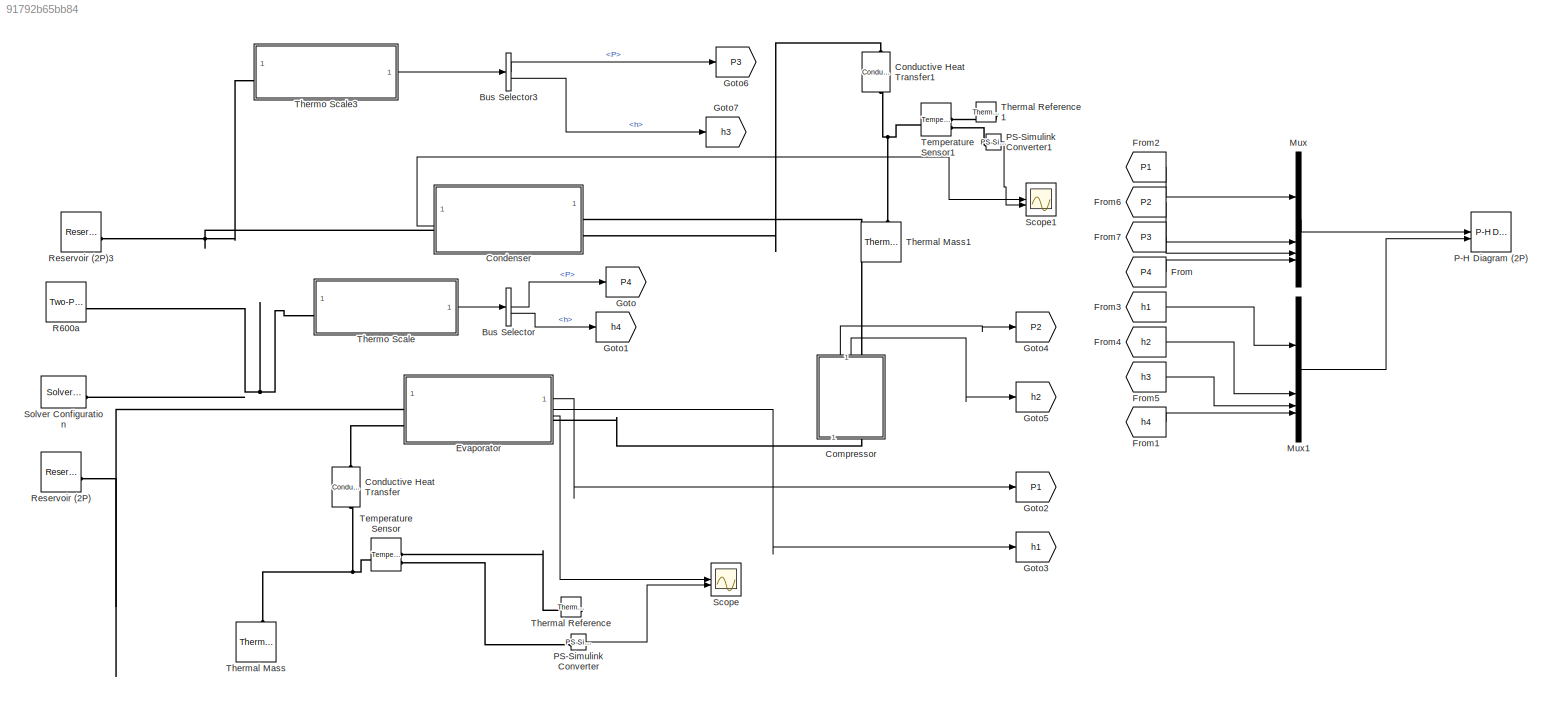
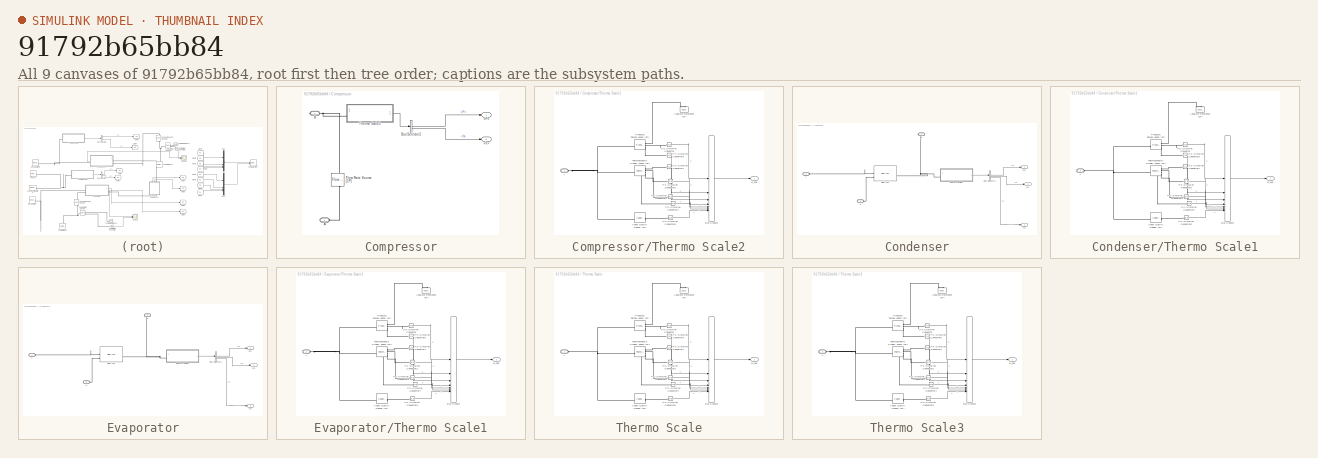
[diagram: thumbnail index - all 9 canvases of the model, root first then tree order]
MODEL slx_91792b65bb84
KIND model
CONFIG AbsTol = auto
CONFIG EnableMultiTasking = off
CONFIG FixedStep = auto
CONFIG MaxStep = auto
CONFIG MinStep = auto
CONFIG RelTol = 1e-3
CONFIG SampleTimeConstraint = Unconstrained
CONFIG SolverName = VariableStepAuto
CONFIG StartTime = 0.0
CONFIG StopTime = 10
BLOCK [BusSelector] Bus Selector
  OutputSignals = P,h
BLOCK [BusSelector] Bus Selector3
  OutputSignals = P,h
BLOCK [SubSystem] Compressor
  NameLocation = right
  PortSchema = {"entries":[{"content":{"sides":[{"content":{"connectorIds":["LConn1"]},"type":"ConnectorPlacement.EquallySpacedRectSide","uuid":"48c1b80d-d804-4b56-9f47-e93425e25a8d"},{"content":{"connectorIds":["RConn1","Out1","Out2"],"side":"RIGHT"},"type":"ConnectorPlacement.EquallySpacedRectSide","uuid":"d5127958-2692-4676-81a6-46f9c9291fea"},{"content":{"side":"TOP"},"type":"ConnectorPlacement.EquallySpaced...<+241ch>
BLOCK [Outport] Compressor/<P>
BLOCK [Outport] Compressor/<h>
  Port = 2
BLOCK [PMIOPort] Compressor/A
  Side = Left
BLOCK [PMIOPort] Compressor/B
  Port = 2
  Side = Right
BLOCK [BusSelector] Compressor/Bus Selector2
  OutputSignals = P,h
BLOCK [Reference] Compressor/Flow Rate Source (2P)  REF=fl_lib/Two-Phase Fluid/Sources/Flow Rate Source
(2P)
  NameLocation = right
  SourceBlock = fl_lib/Two-Phase Fluid/Sources/Flow Rate Source\n(2P)
  SourceType = Flow Rate Source\n(2P)
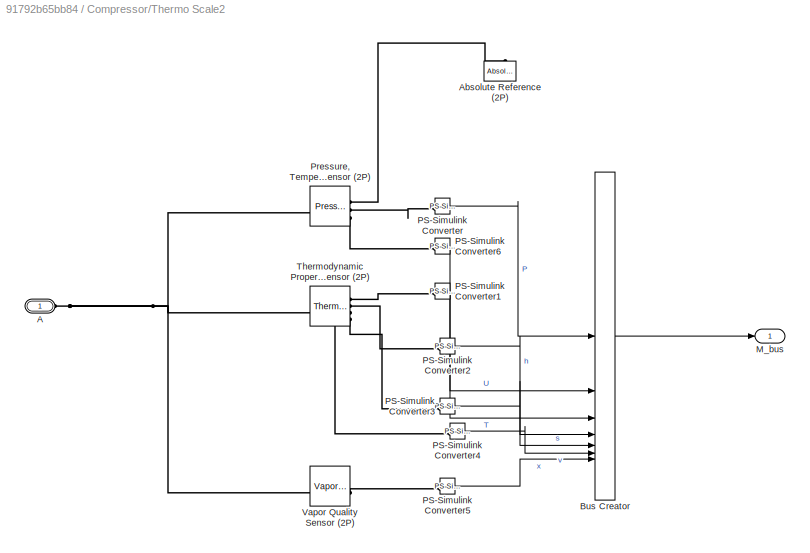
BLOCK [SubSystem] Compressor/Thermo Scale2
BLOCK [PMIOPort] Compressor/Thermo Scale2/A
  Side = Left
BLOCK [Reference] Compressor/Thermo Scale2/Absolute Reference (2P)  REF=fl_lib/Two-Phase Fluid/Elements/Absolute Reference
(2P)
  NameLocation = right
  SourceBlock = fl_lib/Two-Phase Fluid/Elements/Absolute Reference\n(2P)
  SourceType = Absolute Reference\n(2P)
BLOCK [BusCreator] Compressor/Thermo Scale2/Bus Creator
  DisplayOption = bar
  InheritFromInputs = on
  Inputs = 7
BLOCK [Outport] Compressor/Thermo Scale2/M_bus
BLOCK [Reference] Compressor/Thermo Scale2/PS-Simulink Converter  REF=nesl_utility/PS-Simulink
Converter
  SourceBlock = nesl_utility/PS-Simulink\nConverter
  SourceType = PS-Simulink\nConverter
BLOCK [Reference] Compressor/Thermo Scale2/PS-Simulink Converter1  REF=nesl_utility/PS-Simulink
Converter
  SourceBlock = nesl_utility/PS-Simulink\nConverter
  SourceType = PS-Simulink\nConverter
BLOCK [Reference] Compressor/Thermo Scale2/PS-Simulink Converter2  REF=nesl_utility/PS-Simulink
Converter
  SourceBlock = nesl_utility/PS-Simulink\nConverter
  SourceType = PS-Simulink\nConverter
BLOCK [Reference] Compressor/Thermo Scale2/PS-Simulink Converter3  REF=nesl_utility/PS-Simulink
Converter
  SourceBlock = nesl_utility/PS-Simulink\nConverter
  SourceType = PS-Simulink\nConverter
BLOCK [Reference] Compressor/Thermo Scale2/PS-Simulink Converter4  REF=nesl_utility/PS-Simulink
Converter
  SourceBlock = nesl_utility/PS-Simulink\nConverter
  SourceType = PS-Simulink\nConverter
BLOCK [Reference] Compressor/Thermo Scale2/PS-Simulink Converter5  REF=nesl_utility/PS-Simulink
Converter
  SourceBlock = nesl_utility/PS-Simulink\nConverter
  SourceType = PS-Simulink\nConverter
BLOCK [Reference] Compressor/Thermo Scale2/PS-Simulink Converter6  REF=nesl_utility/PS-Simulink
Converter
  SourceBlock = nesl_utility/PS-Simulink\nConverter
  SourceType = PS-Simulink\nConverter
BLOCK [Reference] Compressor/Thermo Scale2/Pressure, Temperature & Internal Energy Sensor (2P)  REF=fl_lib/Two-Phase Fluid/Sensors/Pressure,
Temperature &
Internal Energy
Sensor (2P)
  SourceBlock = fl_lib/Two-Phase Fluid/Sensors/Pressure,\nTemperature &\nInternal Energy\nSensor (2P)
  SourceType = Pressure,\nTemperature &\nInternal Energy\nSensor (2P)
BLOCK [Reference] Compressor/Thermo Scale2/Thermodynamic Properties Sensor (2P)  REF=fl_lib/Two-Phase Fluid/Sensors/Thermodynamic
Properties Sensor
(2P)
  SourceBlock = fl_lib/Two-Phase Fluid/Sensors/Thermodynamic\nProperties Sensor\n(2P)
  SourceType = Thermodynamic\nProperties Sensor\n(2P)
BLOCK [Reference] Compressor/Thermo Scale2/Vapor Quality Sensor (2P)  REF=fl_lib/Two-Phase Fluid/Sensors/Vapor Quality Sensor
(2P)
  SourceBlock = fl_lib/Two-Phase Fluid/Sensors/Vapor Quality Sensor\n(2P)
  SourceType = Vapor Quality Sensor\n(2P)
BLOCK [SubSystem] Condenser
  NameLocation = top
BLOCK [Outport] Condenser/<P>
BLOCK [Outport] Condenser/<T>
  Port = 3
BLOCK [Outport] Condenser/<h>
  Port = 2
BLOCK [PMIOPort] Condenser/A
  Port = 2
  Side = Left
BLOCK [PMIOPort] Condenser/B
  Side = Right
BLOCK [BusSelector] Condenser/Bus Selector1
  OutputSignals = P,h,T
BLOCK [PMIOPort] Condenser/H
  Port = 3
  Side = Left
BLOCK [Reference] Condenser/Pipe (2P)  REF=fl_lib/Two-Phase Fluid/Elements/Pipe (2P)
  SourceBlock = fl_lib/Two-Phase Fluid/Elements/Pipe (2P)
  SourceType = Pipe (2P)
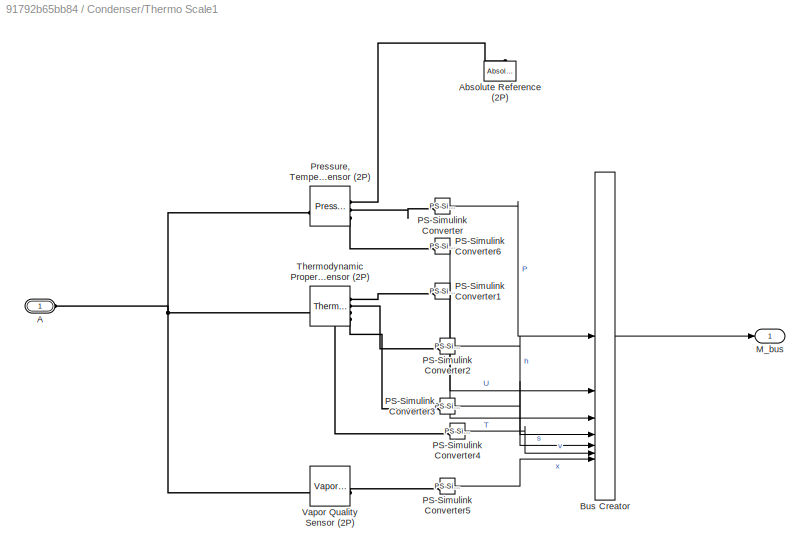
BLOCK [SubSystem] Condenser/Thermo Scale1
BLOCK [PMIOPort] Condenser/Thermo Scale1/A
  Side = Left
BLOCK [Reference] Condenser/Thermo Scale1/Absolute Reference (2P)  REF=fl_lib/Two-Phase Fluid/Elements/Absolute Reference
(2P)
  NameLocation = right
  SourceBlock = fl_lib/Two-Phase Fluid/Elements/Absolute Reference\n(2P)
  SourceType = Absolute Reference\n(2P)
BLOCK [BusCreator] Condenser/Thermo Scale1/Bus Creator
  DisplayOption = bar
  InheritFromInputs = on
  Inputs = 7
BLOCK [Outport] Condenser/Thermo Scale1/M_bus
BLOCK [Reference] Condenser/Thermo Scale1/PS-Simulink Converter  REF=nesl_utility/PS-Simulink
Converter
  SourceBlock = nesl_utility/PS-Simulink\nConverter
  SourceType = PS-Simulink\nConverter
BLOCK [Reference] Condenser/Thermo Scale1/PS-Simulink Converter1  REF=nesl_utility/PS-Simulink
Converter
  SourceBlock = nesl_utility/PS-Simulink\nConverter
  SourceType = PS-Simulink\nConverter
BLOCK [Reference] Condenser/Thermo Scale1/PS-Simulink Converter2  REF=nesl_utility/PS-Simulink
Converter
  SourceBlock = nesl_utility/PS-Simulink\nConverter
  SourceType = PS-Simulink\nConverter
BLOCK [Reference] Condenser/Thermo Scale1/PS-Simulink Converter3  REF=nesl_utility/PS-Simulink
Converter
  SourceBlock = nesl_utility/PS-Simulink\nConverter
  SourceType = PS-Simulink\nConverter
BLOCK [Reference] Condenser/Thermo Scale1/PS-Simulink Converter4  REF=nesl_utility/PS-Simulink
Converter
  SourceBlock = nesl_utility/PS-Simulink\nConverter
  SourceType = PS-Simulink\nConverter
BLOCK [Reference] Condenser/Thermo Scale1/PS-Simulink Converter5  REF=nesl_utility/PS-Simulink
Converter
  SourceBlock = nesl_utility/PS-Simulink\nConverter
  SourceType = PS-Simulink\nConverter
BLOCK [Reference] Condenser/Thermo Scale1/PS-Simulink Converter6  REF=nesl_utility/PS-Simulink
Converter
  SourceBlock = nesl_utility/PS-Simulink\nConverter
  SourceType = PS-Simulink\nConverter
BLOCK [Reference] Condenser/Thermo Scale1/Pressure, Temperature & Internal Energy Sensor (2P)  REF=fl_lib/Two-Phase Fluid/Sensors/Pressure,
Temperature &
Internal Energy
Sensor (2P)
  SourceBlock = fl_lib/Two-Phase Fluid/Sensors/Pressure,\nTemperature &\nInternal Energy\nSensor (2P)
  SourceType = Pressure,\nTemperature &\nInternal Energy\nSensor (2P)
BLOCK [Reference] Condenser/Thermo Scale1/Thermodynamic Properties Sensor (2P)  REF=fl_lib/Two-Phase Fluid/Sensors/Thermodynamic
Properties Sensor
(2P)
  SourceBlock = fl_lib/Two-Phase Fluid/Sensors/Thermodynamic\nProperties Sensor\n(2P)
  SourceType = Thermodynamic\nProperties Sensor\n(2P)
BLOCK [Reference] Condenser/Thermo Scale1/Vapor Quality Sensor (2P)  REF=fl_lib/Two-Phase Fluid/Sensors/Vapor Quality Sensor
(2P)
  SourceBlock = fl_lib/Two-Phase Fluid/Sensors/Vapor Quality Sensor\n(2P)
  SourceType = Vapor Quality Sensor\n(2P)
BLOCK [Reference] Conductive Heat Transfer  REF=fl_lib/Thermal/Thermal Elements/Conductive Heat
Transfer
  NameLocation = left
  SourceBlock = fl_lib/Thermal/Thermal Elements/Conductive Heat\nTransfer
  SourceType = Conductive Heat\nTransfer
BLOCK [Reference] Conductive Heat Transfer1  REF=fl_lib/Thermal/Thermal Elements/Conductive Heat
Transfer
  NameLocation = left
  SourceBlock = fl_lib/Thermal/Thermal Elements/Conductive Heat\nTransfer
  SourceType = Conductive Heat\nTransfer
BLOCK [SubSystem] Evaporator
BLOCK [Outport] Evaporator/<P>
BLOCK [Outport] Evaporator/<T>
  Port = 3
BLOCK [Outport] Evaporator/<h>
  Port = 2
BLOCK [PMIOPort] Evaporator/A
  Port = 2
  Side = Left
BLOCK [PMIOPort] Evaporator/B
  Side = Right
BLOCK [BusSelector] Evaporator/Bus Selector1
  OutputSignals = P,h,T
BLOCK [PMIOPort] Evaporator/H
  Port = 3
  Side = Left
BLOCK [Reference] Evaporator/Pipe (2P)  REF=fl_lib/Two-Phase Fluid/Elements/Pipe (2P)
  SourceBlock = fl_lib/Two-Phase Fluid/Elements/Pipe (2P)
  SourceType = Pipe (2P)
BLOCK [SubSystem] Evaporator/Thermo Scale1
BLOCK [PMIOPort] Evaporator/Thermo Scale1/A
  Side = Left
BLOCK [Reference] Evaporator/Thermo Scale1/Absolute Reference (2P)  REF=fl_lib/Two-Phase Fluid/Elements/Absolute Reference
(2P)
  NameLocation = right
  SourceBlock = fl_lib/Two-Phase Fluid/Elements/Absolute Reference\n(2P)
  SourceType = Absolute Reference\n(2P)
BLOCK [BusCreator] Evaporator/Thermo Scale1/Bus Creator
  DisplayOption = bar
  InheritFromInputs = on
  Inputs = 7
BLOCK [Outport] Evaporator/Thermo Scale1/M_bus
BLOCK [Reference] Evaporator/Thermo Scale1/PS-Simulink Converter  REF=nesl_utility/PS-Simulink
Converter
  SourceBlock = nesl_utility/PS-Simulink\nConverter
  SourceType = PS-Simulink\nConverter
BLOCK [Reference] Evaporator/Thermo Scale1/PS-Simulink Converter1  REF=nesl_utility/PS-Simulink
Converter
  SourceBlock = nesl_utility/PS-Simulink\nConverter
  SourceType = PS-Simulink\nConverter
BLOCK [Reference] Evaporator/Thermo Scale1/PS-Simulink Converter2  REF=nesl_utility/PS-Simulink
Converter
  SourceBlock = nesl_utility/PS-Simulink\nConverter
  SourceType = PS-Simulink\nConverter
BLOCK [Reference] Evaporator/Thermo Scale1/PS-Simulink Converter3  REF=nesl_utility/PS-Simulink
Converter
  SourceBlock = nesl_utility/PS-Simulink\nConverter
  SourceType = PS-Simulink\nConverter
BLOCK [Reference] Evaporator/Thermo Scale1/PS-Simulink Converter4  REF=nesl_utility/PS-Simulink
Converter
  SourceBlock = nesl_utility/PS-Simulink\nConverter
  SourceType = PS-Simulink\nConverter
BLOCK [Reference] Evaporator/Thermo Scale1/PS-Simulink Converter5  REF=nesl_utility/PS-Simulink
Converter
  SourceBlock = nesl_utility/PS-Simulink\nConverter
  SourceType = PS-Simulink\nConverter
BLOCK [Reference] Evaporator/Thermo Scale1/PS-Simulink Converter6  REF=nesl_utility/PS-Simulink
Converter
  SourceBlock = nesl_utility/PS-Simulink\nConverter
  SourceType = PS-Simulink\nConverter
BLOCK [Reference] Evaporator/Thermo Scale1/Pressure, Temperature & Internal Energy Sensor (2P)  REF=fl_lib/Two-Phase Fluid/Sensors/Pressure,
Temperature &
Internal Energy
Sensor (2P)
  SourceBlock = fl_lib/Two-Phase Fluid/Sensors/Pressure,\nTemperature &\nInternal Energy\nSensor (2P)
  SourceType = Pressure,\nTemperature &\nInternal Energy\nSensor (2P)
BLOCK [Reference] Evaporator/Thermo Scale1/Thermodynamic Properties Sensor (2P)  REF=fl_lib/Two-Phase Fluid/Sensors/Thermodynamic
Properties Sensor
(2P)
  SourceBlock = fl_lib/Two-Phase Fluid/Sensors/Thermodynamic\nProperties Sensor\n(2P)
  SourceType = Thermodynamic\nProperties Sensor\n(2P)
BLOCK [Reference] Evaporator/Thermo Scale1/Vapor Quality Sensor (2P)  REF=fl_lib/Two-Phase Fluid/Sensors/Vapor Quality Sensor
(2P)
  SourceBlock = fl_lib/Two-Phase Fluid/Sensors/Vapor Quality Sensor\n(2P)
  SourceType = Vapor Quality Sensor\n(2P)
BLOCK [From] From
  GotoTag = P4
BLOCK [From] From1
  GotoTag = h4
BLOCK [From] From2
  GotoTag = P1
BLOCK [From] From3
  GotoTag = h1
BLOCK [From] From4
  GotoTag = h2
BLOCK [From] From5
  GotoTag = h3
BLOCK [From] From6
  GotoTag = P2
BLOCK [From] From7
  GotoTag = P3
BLOCK [Goto] Goto
  GotoTag = P4
BLOCK [Goto] Goto1
  GotoTag = h4
BLOCK [Goto] Goto2
  GotoTag = P1
BLOCK [Goto] Goto3
  GotoTag = h1
BLOCK [Goto] Goto4
  GotoTag = P2
BLOCK [Goto] Goto5
  GotoTag = h2
BLOCK [Goto] Goto6
  GotoTag = P3
BLOCK [Goto] Goto7
  GotoTag = h3
BLOCK [Mux] Mux
  DisplayOption = bar
BLOCK [Mux] Mux1
  DisplayOption = bar
BLOCK [Reference] P-H Diagram (2P)  REF=SimscapeFluids_lib/Two-Phase Fluid/Utilities/P-H Diagram (2P)
  SourceBlock = SimscapeFluids_lib/Two-Phase Fluid/Utilities/P-H Diagram (2P)
  SourceType = P-H Diagram (2P)
  UserDataPersistent = on
BLOCK [Reference] PS-Simulink Converter  REF=nesl_utility/PS-Simulink
Converter
  SourceBlock = nesl_utility/PS-Simulink\nConverter
  SourceType = PS-Simulink\nConverter
BLOCK [Reference] PS-Simulink Converter1  REF=nesl_utility/PS-Simulink
Converter
  SourceBlock = nesl_utility/PS-Simulink\nConverter
  SourceType = PS-Simulink\nConverter
BLOCK [Reference] R600a  REF=SimscapeFluids_lib/Two-Phase Fluid/Utilities/Two-Phase Fluid
Predefined
Properties (2P)
  SourceBlock = SimscapeFluids_lib/Two-Phase Fluid/Utilities/Two-Phase Fluid\nPredefined\nProperties (2P)
  SourceType = Two-Phase Fluid\nPredefined\nProperties (2P)
BLOCK [Reference] Reservoir (2P)  REF=fl_lib/Two-Phase Fluid/Elements/Reservoir (2P)
  SourceBlock = fl_lib/Two-Phase Fluid/Elements/Reservoir (2P)
  SourceType = Reservoir (2P)
BLOCK [Reference] Reservoir (2P)3  REF=fl_lib/Two-Phase Fluid/Elements/Reservoir (2P)
  SourceBlock = fl_lib/Two-Phase Fluid/Elements/Reservoir (2P)
  SourceType = Reservoir (2P)
BLOCK [Scope] Scope
  Floating = off
  NumInputPorts = 2
  ScopeSpecificationString = Simulink.scopes.TimeScopeBlockCfg('CurrentConfiguration', extmgr.ConfigurationSet(extmgr.Configuration('Core','General UI',true),extmgr.Configuration('Core','Source UI',true),extmgr.Configuration('Sources','WiredSimulink',true),extmgr.Configuration('Visuals','Time Domain',true,'SerializedDisplays',{struct('MinYLimReal','225.41696','MaxYLimReal','319.39812','YLabelReal','','MinYLimMag','225.41696',...<+1459ch>
BLOCK [Scope] Scope1
  Floating = off
  NumInputPorts = 2
  ScopeSpecificationString = Simulink.scopes.TimeScopeBlockCfg('CurrentConfiguration', extmgr.ConfigurationSet(extmgr.Configuration('Core','General UI',true),extmgr.Configuration('Core','Source UI',true),extmgr.Configuration('Sources','WiredSimulink',true,'DataLoggingVariableName','ScopeData1'),extmgr.Configuration('Visuals','Time Domain',true,'SerializedDisplays',{struct('MinYLimReal','292.39708','MaxYLimReal','311.95588','Y...<+1639ch>
BLOCK [Reference] Solver Configuration  REF=nesl_utility/Solver
Configuration
  SourceBlock = nesl_utility/Solver\nConfiguration
  SourceType = Solver\nConfiguration
BLOCK [Reference] Temperature Sensor  REF=fl_lib/Thermal/Thermal Sensors/Temperature Sensor
  SourceBlock = fl_lib/Thermal/Thermal Sensors/Temperature Sensor
  SourceType = Temperature Sensor
BLOCK [Reference] Temperature Sensor1  REF=fl_lib/Thermal/Thermal Sensors/Temperature Sensor
  SourceBlock = fl_lib/Thermal/Thermal Sensors/Temperature Sensor
  SourceType = Temperature Sensor
BLOCK [Reference] Thermal Mass  REF=fl_lib/Thermal/Thermal Elements/Thermal Mass
  NameLocation = right
  SourceBlock = fl_lib/Thermal/Thermal Elements/Thermal Mass
  SourceType = Thermal Mass
BLOCK [Reference] Thermal Mass1  REF=fl_lib/Thermal/Thermal Elements/Thermal Mass
  NameLocation = right
  SourceBlock = fl_lib/Thermal/Thermal Elements/Thermal Mass
  SourceType = Thermal Mass
BLOCK [Reference] Thermal Reference  REF=fl_lib/Thermal/Thermal Elements/Thermal Reference
  NameLocation = top
  SourceBlock = fl_lib/Thermal/Thermal Elements/Thermal Reference
  SourceType = Thermal Reference
BLOCK [Reference] Thermal Reference1  REF=fl_lib/Thermal/Thermal Elements/Thermal Reference
  NameLocation = top
  SourceBlock = fl_lib/Thermal/Thermal Elements/Thermal Reference
  SourceType = Thermal Reference
BLOCK [SubSystem] Thermo Scale
BLOCK [PMIOPort] Thermo Scale/A
  Side = Left
BLOCK [Reference] Thermo Scale/Absolute Reference (2P)  REF=fl_lib/Two-Phase Fluid/Elements/Absolute Reference
(2P)
  NameLocation = right
  SourceBlock = fl_lib/Two-Phase Fluid/Elements/Absolute Reference\n(2P)
  SourceType = Absolute Reference\n(2P)
BLOCK [BusCreator] Thermo Scale/Bus Creator
  DisplayOption = bar
  InheritFromInputs = on
  Inputs = 7
BLOCK [Outport] Thermo Scale/M_bus
BLOCK [Reference] Thermo Scale/PS-Simulink Converter  REF=nesl_utility/PS-Simulink
Converter
  SourceBlock = nesl_utility/PS-Simulink\nConverter
  SourceType = PS-Simulink\nConverter
BLOCK [Reference] Thermo Scale/PS-Simulink Converter1  REF=nesl_utility/PS-Simulink
Converter
  SourceBlock = nesl_utility/PS-Simulink\nConverter
  SourceType = PS-Simulink\nConverter
BLOCK [Reference] Thermo Scale/PS-Simulink Converter2  REF=nesl_utility/PS-Simulink
Converter
  SourceBlock = nesl_utility/PS-Simulink\nConverter
  SourceType = PS-Simulink\nConverter
BLOCK [Reference] Thermo Scale/PS-Simulink Converter3  REF=nesl_utility/PS-Simulink
Converter
  SourceBlock = nesl_utility/PS-Simulink\nConverter
  SourceType = PS-Simulink\nConverter
BLOCK [Reference] Thermo Scale/PS-Simulink Converter4  REF=nesl_utility/PS-Simulink
Converter
  SourceBlock = nesl_utility/PS-Simulink\nConverter
  SourceType = PS-Simulink\nConverter
BLOCK [Reference] Thermo Scale/PS-Simulink Converter5  REF=nesl_utility/PS-Simulink
Converter
  SourceBlock = nesl_utility/PS-Simulink\nConverter
  SourceType = PS-Simulink\nConverter
BLOCK [Reference] Thermo Scale/PS-Simulink Converter6  REF=nesl_utility/PS-Simulink
Converter
  SourceBlock = nesl_utility/PS-Simulink\nConverter
  SourceType = PS-Simulink\nConverter
BLOCK [Reference] Thermo Scale/Pressure, Temperature & Internal Energy Sensor (2P)  REF=fl_lib/Two-Phase Fluid/Sensors/Pressure,
Temperature &
Internal Energy
Sensor (2P)
  SourceBlock = fl_lib/Two-Phase Fluid/Sensors/Pressure,\nTemperature &\nInternal Energy\nSensor (2P)
  SourceType = Pressure,\nTemperature &\nInternal Energy\nSensor (2P)
BLOCK [Reference] Thermo Scale/Thermodynamic Properties Sensor (2P)  REF=fl_lib/Two-Phase Fluid/Sensors/Thermodynamic
Properties Sensor
(2P)
  SourceBlock = fl_lib/Two-Phase Fluid/Sensors/Thermodynamic\nProperties Sensor\n(2P)
  SourceType = Thermodynamic\nProperties Sensor\n(2P)
BLOCK [Reference] Thermo Scale/Vapor Quality Sensor (2P)  REF=fl_lib/Two-Phase Fluid/Sensors/Vapor Quality Sensor
(2P)
  SourceBlock = fl_lib/Two-Phase Fluid/Sensors/Vapor Quality Sensor\n(2P)
  SourceType = Vapor Quality Sensor\n(2P)
BLOCK [SubSystem] Thermo Scale3
BLOCK [PMIOPort] Thermo Scale3/A
  Side = Left
BLOCK [Reference] Thermo Scale3/Absolute Reference (2P)  REF=fl_lib/Two-Phase Fluid/Elements/Absolute Reference
(2P)
  NameLocation = right
  SourceBlock = fl_lib/Two-Phase Fluid/Elements/Absolute Reference\n(2P)
  SourceType = Absolute Reference\n(2P)
BLOCK [BusCreator] Thermo Scale3/Bus Creator
  DisplayOption = bar
  InheritFromInputs = on
  Inputs = 7
BLOCK [Outport] Thermo Scale3/M_bus
BLOCK [Reference] Thermo Scale3/PS-Simulink Converter  REF=nesl_utility/PS-Simulink
Converter
  SourceBlock = nesl_utility/PS-Simulink\nConverter
  SourceType = PS-Simulink\nConverter
BLOCK [Reference] Thermo Scale3/PS-Simulink Converter1  REF=nesl_utility/PS-Simulink
Converter
  SourceBlock = nesl_utility/PS-Simulink\nConverter
  SourceType = PS-Simulink\nConverter
BLOCK [Reference] Thermo Scale3/PS-Simulink Converter2  REF=nesl_utility/PS-Simulink
Converter
  SourceBlock = nesl_utility/PS-Simulink\nConverter
  SourceType = PS-Simulink\nConverter
BLOCK [Reference] Thermo Scale3/PS-Simulink Converter3  REF=nesl_utility/PS-Simulink
Converter
  SourceBlock = nesl_utility/PS-Simulink\nConverter
  SourceType = PS-Simulink\nConverter
BLOCK [Reference] Thermo Scale3/PS-Simulink Converter4  REF=nesl_utility/PS-Simulink
Converter
  SourceBlock = nesl_utility/PS-Simulink\nConverter
  SourceType = PS-Simulink\nConverter
BLOCK [Reference] Thermo Scale3/PS-Simulink Converter5  REF=nesl_utility/PS-Simulink
Converter
  SourceBlock = nesl_utility/PS-Simulink\nConverter
  SourceType = PS-Simulink\nConverter
BLOCK [Reference] Thermo Scale3/PS-Simulink Converter6  REF=nesl_utility/PS-Simulink
Converter
  SourceBlock = nesl_utility/PS-Simulink\nConverter
  SourceType = PS-Simulink\nConverter
BLOCK [Reference] Thermo Scale3/Pressure, Temperature & Internal Energy Sensor (2P)  REF=fl_lib/Two-Phase Fluid/Sensors/Pressure,
Temperature &
Internal Energy
Sensor (2P)
  SourceBlock = fl_lib/Two-Phase Fluid/Sensors/Pressure,\nTemperature &\nInternal Energy\nSensor (2P)
  SourceType = Pressure,\nTemperature &\nInternal Energy\nSensor (2P)
BLOCK [Reference] Thermo Scale3/Thermodynamic Properties Sensor (2P)  REF=fl_lib/Two-Phase Fluid/Sensors/Thermodynamic
Properties Sensor
(2P)
  SourceBlock = fl_lib/Two-Phase Fluid/Sensors/Thermodynamic\nProperties Sensor\n(2P)
  SourceType = Thermodynamic\nProperties Sensor\n(2P)
BLOCK [Reference] Thermo Scale3/Vapor Quality Sensor (2P)  REF=fl_lib/Two-Phase Fluid/Sensors/Vapor Quality Sensor
(2P)
  SourceBlock = fl_lib/Two-Phase Fluid/Sensors/Vapor Quality Sensor\n(2P)
  SourceType = Vapor Quality Sensor\n(2P)
LINE Bus Selector3:1 -> Goto6:1
LINE Bus Selector3:2 -> Goto7:1
LINE Bus Selector:1 -> Goto:1
LINE Bus Selector:2 -> Goto1:1
LINE Compressor/Bus Selector2:1 -> Compressor/<P>:1
LINE Compressor/Bus Selector2:2 -> Compressor/<h>:1
LINE Compressor/Thermo Scale2/Bus Creator:1 -> Compressor/Thermo Scale2/M_bus:1
LINE Compressor/Thermo Scale2/PS-Simulink Converter1:1 -> Compressor/Thermo Scale2/Bus Creator:3
LINE Compressor/Thermo Scale2/PS-Simulink Converter2:1 -> Compressor/Thermo Scale2/Bus Creator:4
LINE Compressor/Thermo Scale2/PS-Simulink Converter3:1 -> Compressor/Thermo Scale2/Bus Creator:5
LINE Compressor/Thermo Scale2/PS-Simulink Converter4:1 -> Compressor/Thermo Scale2/Bus Creator:6
LINE Compressor/Thermo Scale2/PS-Simulink Converter5:1 -> Compressor/Thermo Scale2/Bus Creator:7
LINE Compressor/Thermo Scale2/PS-Simulink Converter6:1 -> Compressor/Thermo Scale2/Bus Creator:2
LINE Compressor/Thermo Scale2/PS-Simulink Converter:1 -> Compressor/Thermo Scale2/Bus Creator:1
LINE Compressor/Thermo Scale2:1 -> Compressor/Bus Selector2:1
LINE Compressor:1 -> Goto4:1
LINE Compressor:2 -> Goto5:1
LINE Condenser/Bus Selector1:1 -> Condenser/<P>:1
LINE Condenser/Bus Selector1:2 -> Condenser/<h>:1
LINE Condenser/Bus Selector1:3 -> Condenser/<T>:1
LINE Condenser/Thermo Scale1/Bus Creator:1 -> Condenser/Thermo Scale1/M_bus:1
LINE Condenser/Thermo Scale1/PS-Simulink Converter1:1 -> Condenser/Thermo Scale1/Bus Creator:3
LINE Condenser/Thermo Scale1/PS-Simulink Converter2:1 -> Condenser/Thermo Scale1/Bus Creator:4
LINE Condenser/Thermo Scale1/PS-Simulink Converter3:1 -> Condenser/Thermo Scale1/Bus Creator:5
LINE Condenser/Thermo Scale1/PS-Simulink Converter4:1 -> Condenser/Thermo Scale1/Bus Creator:6
LINE Condenser/Thermo Scale1/PS-Simulink Converter5:1 -> Condenser/Thermo Scale1/Bus Creator:7
LINE Condenser/Thermo Scale1/PS-Simulink Converter6:1 -> Condenser/Thermo Scale1/Bus Creator:2
LINE Condenser/Thermo Scale1/PS-Simulink Converter:1 -> Condenser/Thermo Scale1/Bus Creator:1
LINE Condenser/Thermo Scale1:1 -> Condenser/Bus Selector1:1
LINE Condenser:3 -> Scope1:1
LINE Evaporator/Bus Selector1:1 -> Evaporator/<P>:1
LINE Evaporator/Bus Selector1:2 -> Evaporator/<h>:1
LINE Evaporator/Bus Selector1:3 -> Evaporator/<T>:1
LINE Evaporator/Thermo Scale1/Bus Creator:1 -> Evaporator/Thermo Scale1/M_bus:1
LINE Evaporator/Thermo Scale1/PS-Simulink Converter1:1 -> Evaporator/Thermo Scale1/Bus Creator:3
LINE Evaporator/Thermo Scale1/PS-Simulink Converter2:1 -> Evaporator/Thermo Scale1/Bus Creator:4
LINE Evaporator/Thermo Scale1/PS-Simulink Converter3:1 -> Evaporator/Thermo Scale1/Bus Creator:5
LINE Evaporator/Thermo Scale1/PS-Simulink Converter4:1 -> Evaporator/Thermo Scale1/Bus Creator:6
LINE Evaporator/Thermo Scale1/PS-Simulink Converter5:1 -> Evaporator/Thermo Scale1/Bus Creator:7
LINE Evaporator/Thermo Scale1/PS-Simulink Converter6:1 -> Evaporator/Thermo Scale1/Bus Creator:2
LINE Evaporator/Thermo Scale1/PS-Simulink Converter:1 -> Evaporator/Thermo Scale1/Bus Creator:1
LINE Evaporator/Thermo Scale1:1 -> Evaporator/Bus Selector1:1
LINE Evaporator:1 -> Goto2:1
LINE Evaporator:2 -> Goto3:1
LINE Evaporator:3 -> Scope:1
LINE From1:1 -> Mux1:4
LINE From2:1 -> Mux:1
LINE From3:1 -> Mux1:1
LINE From4:1 -> Mux1:2
LINE From5:1 -> Mux1:3
LINE From6:1 -> Mux:2
LINE From7:1 -> Mux:3
LINE From:1 -> Mux:4
LINE Mux1:1 -> P-H Diagram (2P):2
LINE Mux:1 -> P-H Diagram (2P):1
LINE PS-Simulink Converter1:1 -> Scope1:2
LINE PS-Simulink Converter:1 -> Scope:2
LINE Thermo Scale/Bus Creator:1 -> Thermo Scale/M_bus:1
LINE Thermo Scale/PS-Simulink Converter1:1 -> Thermo Scale/Bus Creator:3
LINE Thermo Scale/PS-Simulink Converter2:1 -> Thermo Scale/Bus Creator:4
LINE Thermo Scale/PS-Simulink Converter3:1 -> Thermo Scale/Bus Creator:5
LINE Thermo Scale/PS-Simulink Converter4:1 -> Thermo Scale/Bus Creator:6
LINE Thermo Scale/PS-Simulink Converter5:1 -> Thermo Scale/Bus Creator:7
LINE Thermo Scale/PS-Simulink Converter6:1 -> Thermo Scale/Bus Creator:2
LINE Thermo Scale/PS-Simulink Converter:1 -> Thermo Scale/Bus Creator:1
LINE Thermo Scale3/Bus Creator:1 -> Thermo Scale3/M_bus:1
LINE Thermo Scale3/PS-Simulink Converter1:1 -> Thermo Scale3/Bus Creator:3
LINE Thermo Scale3/PS-Simulink Converter2:1 -> Thermo Scale3/Bus Creator:4
LINE Thermo Scale3/PS-Simulink Converter3:1 -> Thermo Scale3/Bus Creator:5
LINE Thermo Scale3/PS-Simulink Converter4:1 -> Thermo Scale3/Bus Creator:6
LINE Thermo Scale3/PS-Simulink Converter5:1 -> Thermo Scale3/Bus Creator:7
LINE Thermo Scale3/PS-Simulink Converter6:1 -> Thermo Scale3/Bus Creator:2
LINE Thermo Scale3/PS-Simulink Converter:1 -> Thermo Scale3/Bus Creator:1
LINE Thermo Scale3:1 -> Bus Selector3:1
LINE Thermo Scale:1 -> Bus Selector:1
PLINE Compressor/A:RConn1 -- Compressor/Flow Rate Source (2P):LConn1
PNET net1: Compressor/B:RConn1 -- Compressor/Flow Rate Source (2P):RConn1 -- Compressor/Thermo Scale2:LConn1
PNET net2: Compressor/Thermo Scale2/A:RConn1 -- Compressor/Thermo Scale2/Pressure, Temperature & Internal Energy Sensor (2P):LConn1 -- Compressor/Thermo Scale2/Thermodynamic Properties Sensor (2P):LConn1 -- Compressor/Thermo Scale2/Vapor Quality Sensor (2P):LConn1
PLINE Compressor/Thermo Scale2/Absolute Reference (2P):LConn1 -- Compressor/Thermo Scale2/Pressure, Temperature & Internal Energy Sensor (2P):RConn1
PLINE Compressor/Thermo Scale2/PS-Simulink Converter1:LConn1 -- Compressor/Thermo Scale2/Thermodynamic Properties Sensor (2P):RConn1
PLINE Compressor/Thermo Scale2/PS-Simulink Converter2:LConn1 -- Compressor/Thermo Scale2/Thermodynamic Properties Sensor (2P):RConn2
PLINE Compressor/Thermo Scale2/PS-Simulink Converter3:LConn1 -- Compressor/Thermo Scale2/Thermodynamic Properties Sensor (2P):RConn4
PLINE Compressor/Thermo Scale2/PS-Simulink Converter4:LConn1 -- Compressor/Thermo Scale2/Thermodynamic Properties Sensor (2P):RConn3
PLINE Compressor/Thermo Scale2/PS-Simulink Converter5:LConn1 -- Compressor/Thermo Scale2/Vapor Quality Sensor (2P):RConn1
PLINE Compressor/Thermo Scale2/PS-Simulink Converter6:LConn1 -- Compressor/Thermo Scale2/Pressure, Temperature & Internal Energy Sensor (2P):RConn3
PLINE Compressor/Thermo Scale2/PS-Simulink Converter:LConn1 -- Compressor/Thermo Scale2/Pressure, Temperature & Internal Energy Sensor (2P):RConn2
PLINE Compressor:LConn1 -- Evaporator:RConn1
PLINE Compressor:RConn1 -- Condenser:LConn1
PLINE Condenser/A:RConn1 -- Condenser/Pipe (2P):LConn1
PNET net3: Condenser/B:RConn1 -- Condenser/Pipe (2P):RConn1 -- Condenser/Thermo Scale1:LConn1
PLINE Condenser/H:RConn1 -- Condenser/Pipe (2P):LConn2
PNET net4: Condenser/Thermo Scale1/A:RConn1 -- Condenser/Thermo Scale1/Pressure, Temperature & Internal Energy Sensor (2P):LConn1 -- Condenser/Thermo Scale1/Thermodynamic Properties Sensor (2P):LConn1 -- Condenser/Thermo Scale1/Vapor Quality Sensor (2P):LConn1
PLINE Condenser/Thermo Scale1/Absolute Reference (2P):LConn1 -- Condenser/Thermo Scale1/Pressure, Temperature & Internal Energy Sensor (2P):RConn1
PLINE Condenser/Thermo Scale1/PS-Simulink Converter1:LConn1 -- Condenser/Thermo Scale1/Thermodynamic Properties Sensor (2P):RConn1
PLINE Condenser/Thermo Scale1/PS-Simulink Converter2:LConn1 -- Condenser/Thermo Scale1/Thermodynamic Properties Sensor (2P):RConn2
PLINE Condenser/Thermo Scale1/PS-Simulink Converter3:LConn1 -- Condenser/Thermo Scale1/Thermodynamic Properties Sensor (2P):RConn4
PLINE Condenser/Thermo Scale1/PS-Simulink Converter4:LConn1 -- Condenser/Thermo Scale1/Thermodynamic Properties Sensor (2P):RConn3
PLINE Condenser/Thermo Scale1/PS-Simulink Converter5:LConn1 -- Condenser/Thermo Scale1/Vapor Quality Sensor (2P):RConn1
PLINE Condenser/Thermo Scale1/PS-Simulink Converter6:LConn1 -- Condenser/Thermo Scale1/Pressure, Temperature & Internal Energy Sensor (2P):RConn3
PLINE Condenser/Thermo Scale1/PS-Simulink Converter:LConn1 -- Condenser/Thermo Scale1/Pressure, Temperature & Internal Energy Sensor (2P):RConn2
PLINE Condenser:LConn2 -- Conductive Heat Transfer1:LConn1
PNET net5: Condenser:RConn1 -- Reservoir (2P)3:LConn1 -- Thermo Scale3:LConn1
PNET net6: Conductive Heat Transfer1:RConn1 -- Temperature Sensor1:LConn1 -- Thermal Mass1:LConn1
PLINE Conductive Heat Transfer:LConn1 -- Evaporator:LConn2
PNET net7: Conductive Heat Transfer:RConn1 -- Temperature Sensor:LConn1 -- Thermal Mass:LConn1
PLINE Evaporator/A:RConn1 -- Evaporator/Pipe (2P):LConn1
PNET net8: Evaporator/B:RConn1 -- Evaporator/Pipe (2P):RConn1 -- Evaporator/Thermo Scale1:LConn1
PLINE Evaporator/H:RConn1 -- Evaporator/Pipe (2P):LConn2
PNET net9: Evaporator/Thermo Scale1/A:RConn1 -- Evaporator/Thermo Scale1/Pressure, Temperature & Internal Energy Sensor (2P):LConn1 -- Evaporator/Thermo Scale1/Thermodynamic Properties Sensor (2P):LConn1 -- Evaporator/Thermo Scale1/Vapor Quality Sensor (2P):LConn1
PLINE Evaporator/Thermo Scale1/Absolute Reference (2P):LConn1 -- Evaporator/Thermo Scale1/Pressure, Temperature & Internal Energy Sensor (2P):RConn1
PLINE Evaporator/Thermo Scale1/PS-Simulink Converter1:LConn1 -- Evaporator/Thermo Scale1/Thermodynamic Properties Sensor (2P):RConn1
PLINE Evaporator/Thermo Scale1/PS-Simulink Converter2:LConn1 -- Evaporator/Thermo Scale1/Thermodynamic Properties Sensor (2P):RConn2
PLINE Evaporator/Thermo Scale1/PS-Simulink Converter3:LConn1 -- Evaporator/Thermo Scale1/Thermodynamic Properties Sensor (2P):RConn4
PLINE Evaporator/Thermo Scale1/PS-Simulink Converter4:LConn1 -- Evaporator/Thermo Scale1/Thermodynamic Properties Sensor (2P):RConn3
PLINE Evaporator/Thermo Scale1/PS-Simulink Converter5:LConn1 -- Evaporator/Thermo Scale1/Vapor Quality Sensor (2P):RConn1
PLINE Evaporator/Thermo Scale1/PS-Simulink Converter6:LConn1 -- Evaporator/Thermo Scale1/Pressure, Temperature & Internal Energy Sensor (2P):RConn3
PLINE Evaporator/Thermo Scale1/PS-Simulink Converter:LConn1 -- Evaporator/Thermo Scale1/Pressure, Temperature & Internal Energy Sensor (2P):RConn2
PNET net10: Evaporator:LConn1 -- R600a:RConn1 -- Reservoir (2P):LConn1 -- Solver Configuration:RConn1 -- Thermo Scale:LConn1
PLINE PS-Simulink Converter1:LConn1 -- Temperature Sensor1:RConn2
PLINE PS-Simulink Converter:LConn1 -- Temperature Sensor:RConn2
PLINE Temperature Sensor1:RConn1 -- Thermal Reference1:LConn1
PLINE Temperature Sensor:RConn1 -- Thermal Reference:LConn1
PNET net11: Thermo Scale/A:RConn1 -- Thermo Scale/Pressure, Temperature & Internal Energy Sensor (2P):LConn1 -- Thermo Scale/Thermodynamic Properties Sensor (2P):LConn1 -- Thermo Scale/Vapor Quality Sensor (2P):LConn1
PLINE Thermo Scale/Absolute Reference (2P):LConn1 -- Thermo Scale/Pressure, Temperature & Internal Energy Sensor (2P):RConn1
PLINE Thermo Scale/PS-Simulink Converter1:LConn1 -- Thermo Scale/Thermodynamic Properties Sensor (2P):RConn1
PLINE Thermo Scale/PS-Simulink Converter2:LConn1 -- Thermo Scale/Thermodynamic Properties Sensor (2P):RConn2
PLINE Thermo Scale/PS-Simulink Converter3:LConn1 -- Thermo Scale/Thermodynamic Properties Sensor (2P):RConn4
PLINE Thermo Scale/PS-Simulink Converter4:LConn1 -- Thermo Scale/Thermodynamic Properties Sensor (2P):RConn3
PLINE Thermo Scale/PS-Simulink Converter5:LConn1 -- Thermo Scale/Vapor Quality Sensor (2P):RConn1
PLINE Thermo Scale/PS-Simulink Converter6:LConn1 -- Thermo Scale/Pressure, Temperature & Internal Energy Sensor (2P):RConn3
PLINE Thermo Scale/PS-Simulink Converter:LConn1 -- Thermo Scale/Pressure, Temperature & Internal Energy Sensor (2P):RConn2
PNET net12: Thermo Scale3/A:RConn1 -- Thermo Scale3/Pressure, Temperature & Internal Energy Sensor (2P):LConn1 -- Thermo Scale3/Thermodynamic Properties Sensor (2P):LConn1 -- Thermo Scale3/Vapor Quality Sensor (2P):LConn1
PLINE Thermo Scale3/Absolute Reference (2P):LConn1 -- Thermo Scale3/Pressure, Temperature & Internal Energy Sensor (2P):RConn1
PLINE Thermo Scale3/PS-Simulink Converter1:LConn1 -- Thermo Scale3/Thermodynamic Properties Sensor (2P):RConn1
PLINE Thermo Scale3/PS-Simulink Converter2:LConn1 -- Thermo Scale3/Thermodynamic Properties Sensor (2P):RConn2
PLINE Thermo Scale3/PS-Simulink Converter3:LConn1 -- Thermo Scale3/Thermodynamic Properties Sensor (2P):RConn4
PLINE Thermo Scale3/PS-Simulink Converter4:LConn1 -- Thermo Scale3/Thermodynamic Properties Sensor (2P):RConn3
PLINE Thermo Scale3/PS-Simulink Converter5:LConn1 -- Thermo Scale3/Vapor Quality Sensor (2P):RConn1
PLINE Thermo Scale3/PS-Simulink Converter6:LConn1 -- Thermo Scale3/Pressure, Temperature & Internal Energy Sensor (2P):RConn3
PLINE Thermo Scale3/PS-Simulink Converter:LConn1 -- Thermo Scale3/Pressure, Temperature & Internal Energy Sensor (2P):RConn2
note: PNET lines group multi-terminal physical nets as a canonical sorted terminal list (undirected conserving connections); 2-terminal nets keep the pairwise PLINE form
